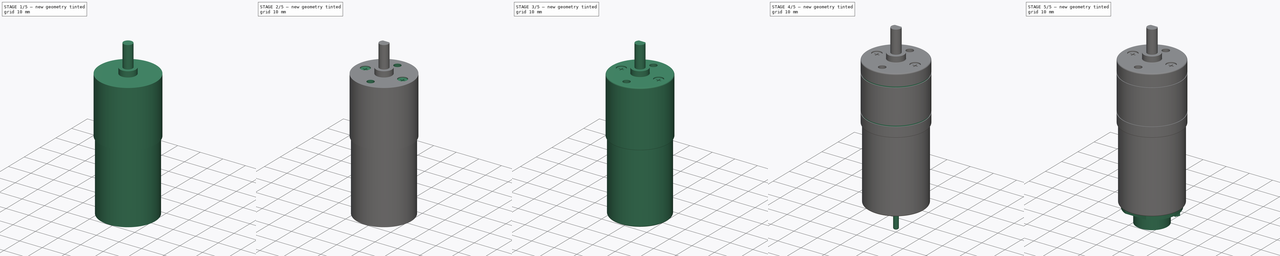
[diagram: build sequence overview — one tinted view per stage of 5, left to right]
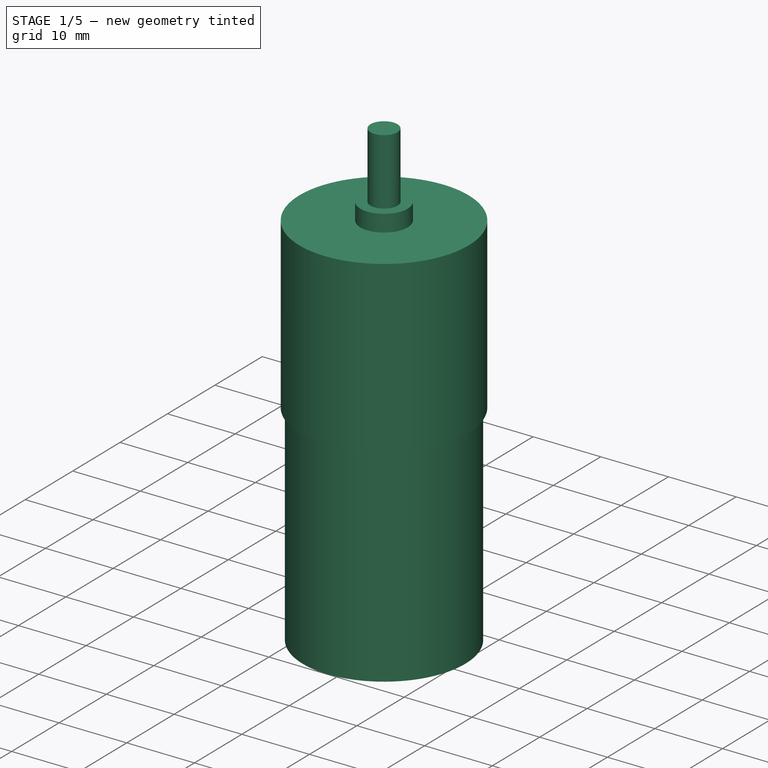
[diagram: stage 1 of 5 — iso view after this stage's code; geometry added in this stage tinted green]
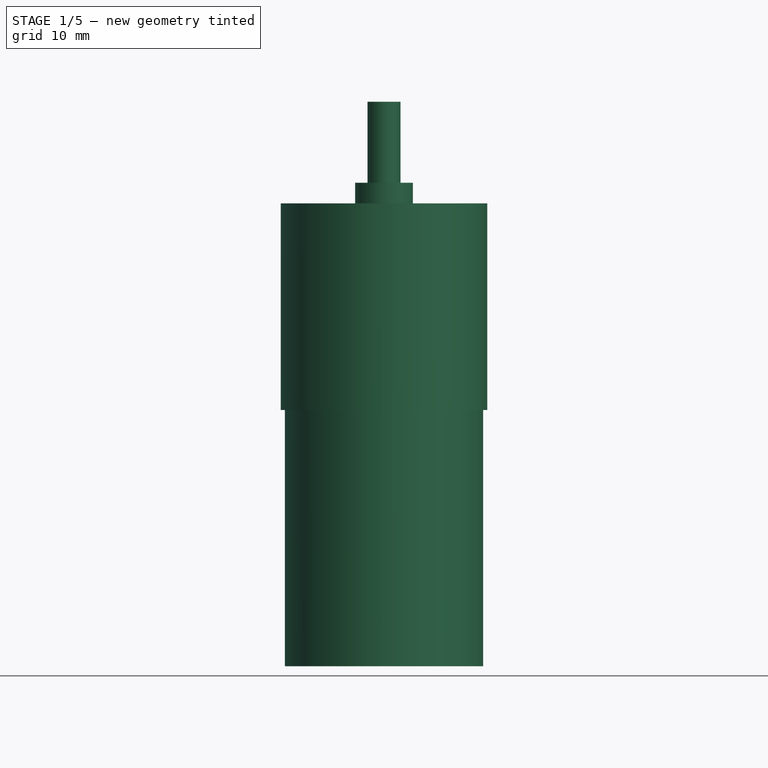
[diagram: stage 1 of 5 — front view after this stage's code; geometry added in this stage tinted green]
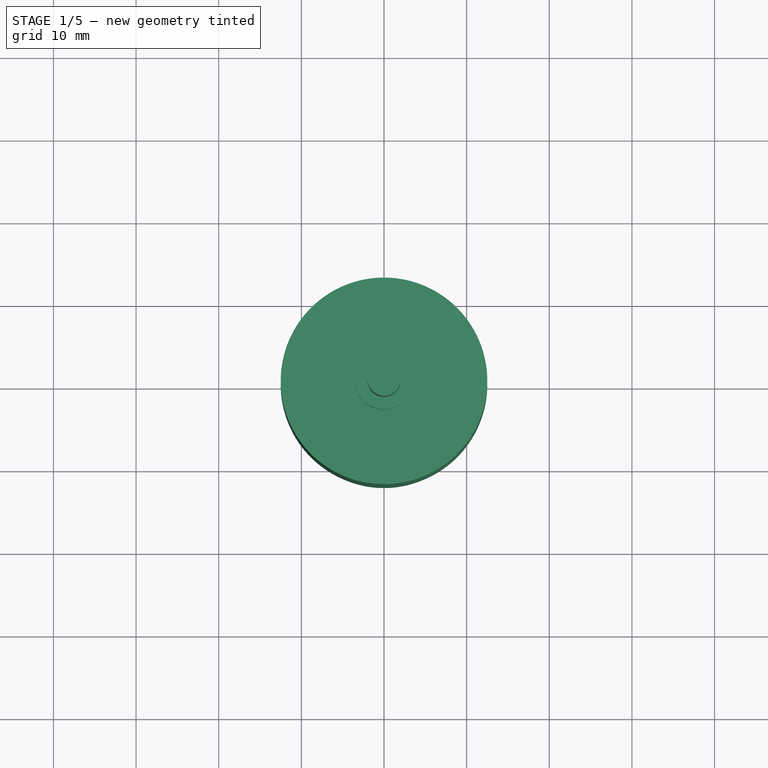
[diagram: stage 1 of 5 — top view after this stage's code; geometry added in this stage tinted green]
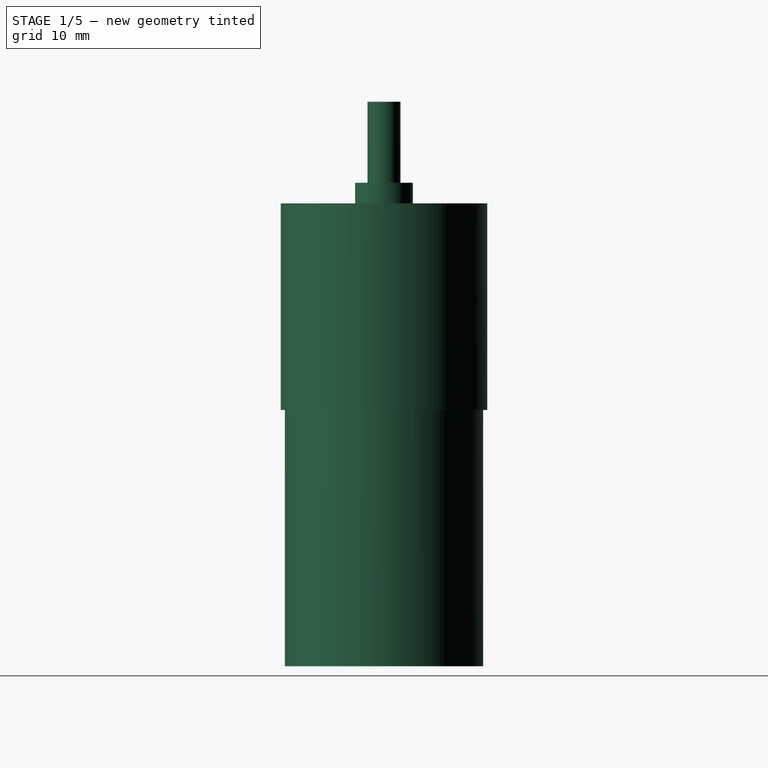
[diagram: stage 1 of 5 — right view after this stage's code; geometry added in this stage tinted green]
FCSTD DOCUMENT  (FreeCAD 1.0R39109 (Git))
Label: dc_motor_wenc
License: All rights reserved
LicenseURL: http://en.wikipedia.org/wiki/All_rights_reserved
objects: Sketcher::SketchObject×17, PartDesign::Pad×10, PartDesign::Fillet×6, PartDesign::Pocket×4, PartDesign::PolarPattern×1, PartDesign::Groove×1, PartDesign::Body×1
note: 100 computed .brp shape members not serialized (recipe doc carries the construction recipe); baked Part::Feature solids carry a one-line shape summary decoded from their .brp

FEATURE [Sketcher::SketchObject] Sketch
  ArcFitTolerance = 1e-06
  AttachmentSupport = -> [XY_Plane]
  FullyConstrained = true
  MakeInternals = false
  MapMode = 5
  sketch-geometry (1):
    g0: Circle CenterX=0 CenterY=0 CenterZ=0 NormalX=0 NormalY=0 NormalZ=1 AngleXU=0 Radius=12
  constraints (2):
    c: Coincident(g0,g-1)
    c: Radius(g0) = 12
FEATURE [PartDesign::Pad] Pad  label="MotorPad"
  Direction = (0,0,1)
  Length = 31
  Length2 = 10
  Profile = -> Sketch
  ReferenceAxis = -> Sketch [N_Axis]
  Refine = true
  Suppressed = false
  Type = 0
FEATURE [Sketcher::SketchObject] Sketch001
  ArcFitTolerance = 1e-06
  AttachmentSupport = -> [Pad]
  FullyConstrained = true
  MakeInternals = false
  MapMode = 5
  Placement = pos=(0,0,31) rot=(0,0,1;0rad)
  sketch-geometry (1):
    g0: Circle CenterX=0 CenterY=0 CenterZ=0 NormalX=0 NormalY=0 NormalZ=1 AngleXU=0 Radius=12.5
  constraints (2):
    c: Coincident(g0,g-1)
    c: Radius(g0) = 12.5
FEATURE [PartDesign::Pad] Pad001  label="ReductorPad"
  BaseFeature = -> Pad
  Direction = (0,0,1)
  Length = 25
  Length2 = 10
  Profile = -> Sketch001
  ReferenceAxis = -> Sketch001 [N_Axis]
  Refine = true
  Suppressed = false
  Type = 0
FEATURE [Sketcher::SketchObject] Sketch002
  ArcFitTolerance = 1e-06
  AttachmentSupport = -> [Pad001]
  FullyConstrained = true
  MakeInternals = false
  MapMode = 5
  Placement = pos=(0,0,56) rot=(0,0,1;0rad)
  sketch-geometry (1):
    g0: Circle CenterX=0 CenterY=0 CenterZ=0 NormalX=0 NormalY=0 NormalZ=1 AngleXU=0 Radius=3.5
  constraints (2):
    c: Coincident(g0,g-1)
    c: Radius(g0) = 3.5
FEATURE [PartDesign::Pad] Pad002  label="ShaftSupportPad"
  BaseFeature = -> Pad001
  Direction = (0,0,1)
  Length = 2.5
  Length2 = 10
  Profile = -> Sketch002
  ReferenceAxis = -> Sketch002 [N_Axis]
  Refine = true
  Suppressed = false
  Type = 0
FEATURE [Sketcher::SketchObject] Sketch003
  ArcFitTolerance = 1e-06
  AttachmentSupport = -> [Pad002]
  FullyConstrained = true
  MakeInternals = false
  MapMode = 5
  Placement = pos=(0,0,58.5) rot=(0,0,1;0rad)
  sketch-geometry (1):
    g0: Circle CenterX=0 CenterY=0 CenterZ=0 NormalX=0 NormalY=0 NormalZ=1 AngleXU=0 Radius=2
  constraints (2):
    c: Coincident(g0,g-1)
    c: Radius(g0) = 2
FEATURE [PartDesign::Pad] Pad003  label="ShaftPad"
  BaseFeature = -> Pad002
  Direction = (0,0,1)
  Length = 9.8
  Length2 = 10
  Profile = -> Sketch003
  ReferenceAxis = -> Sketch003 [N_Axis]
  Refine = true
  Suppressed = false
  Type = 0
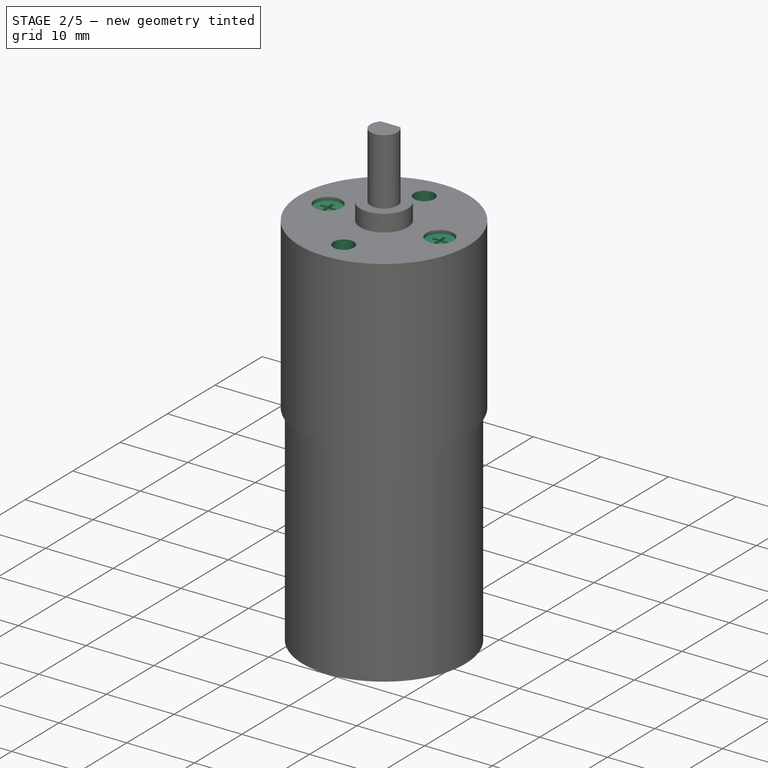
[diagram: stage 2 of 5 — iso view after this stage's code; geometry added in this stage tinted green]
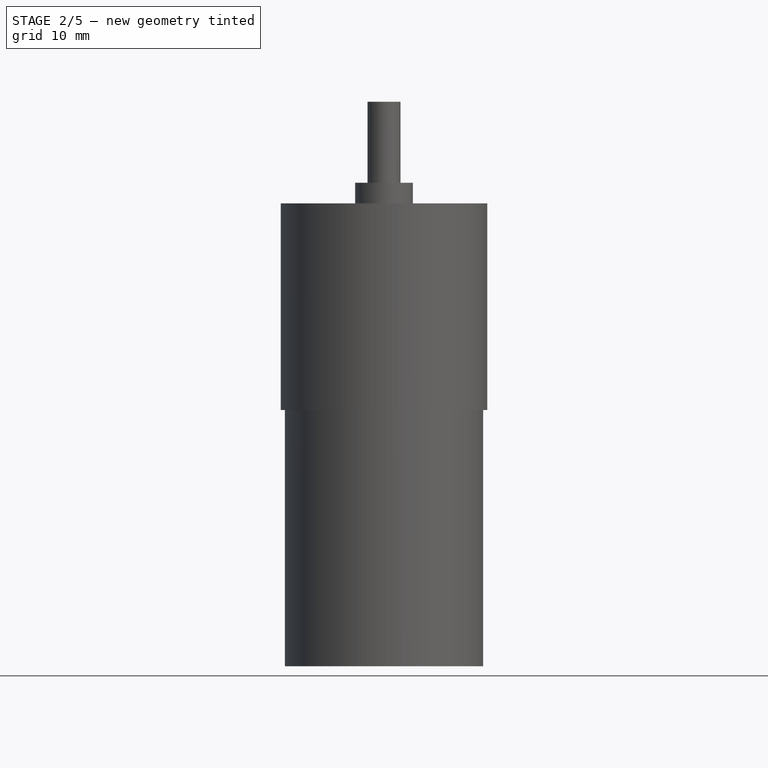
[diagram: stage 2 of 5 — front view after this stage's code; geometry added in this stage tinted green]
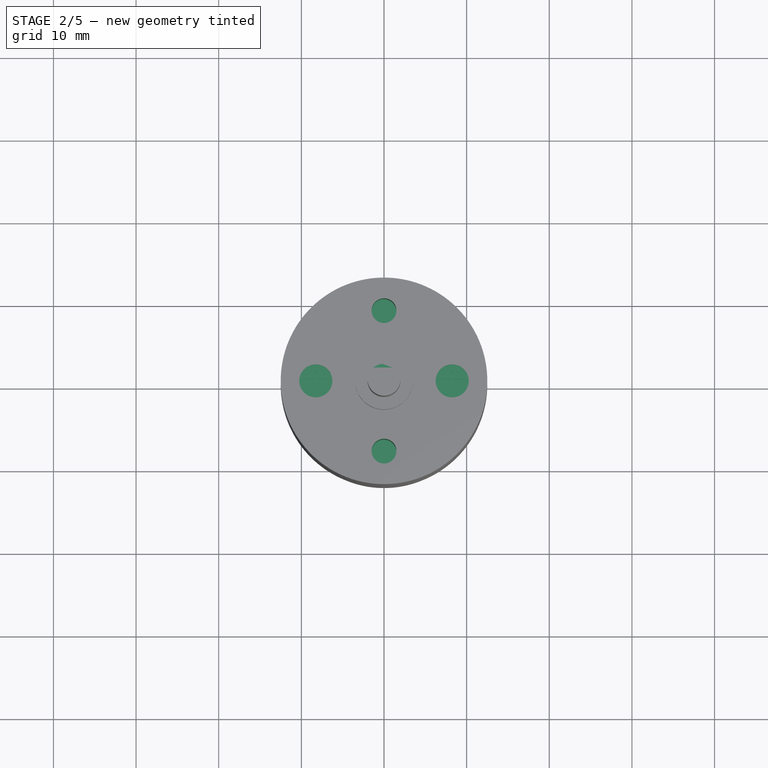
[diagram: stage 2 of 5 — top view after this stage's code; geometry added in this stage tinted green]
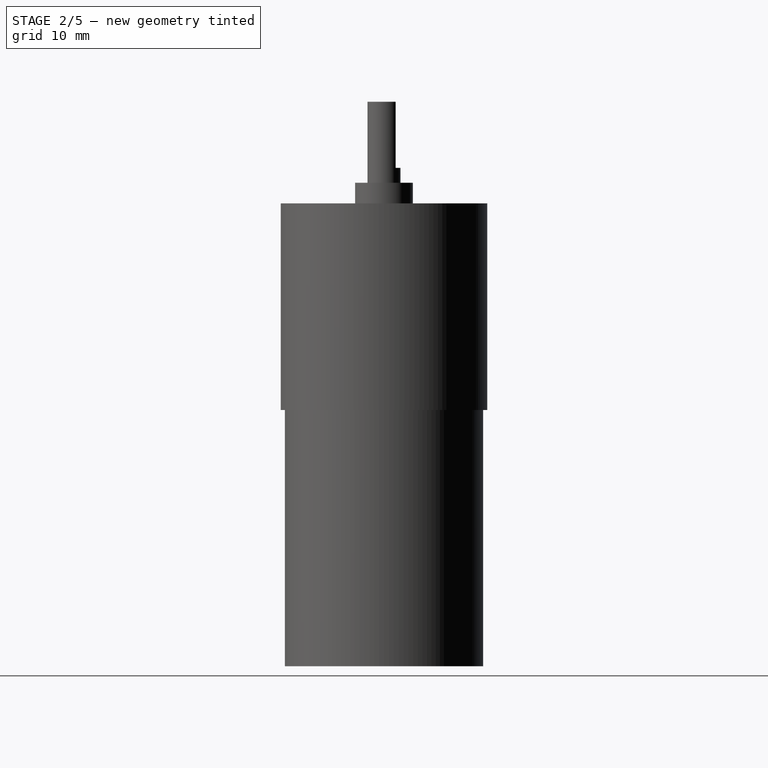
[diagram: stage 2 of 5 — right view after this stage's code; geometry added in this stage tinted green]
FEATURE [Sketcher::SketchObject] Sketch004
  ArcFitTolerance = 1e-06
  AttachmentSupport = -> [Pad003]
  ExternalGeometry = -> [Pad003]
  FullyConstrained = true
  MakeInternals = false
  MapMode = 5
  Placement = pos=(0,0,68.3) rot=(0,0,1;0rad)
  sketch-geometry (3):
    g0: ArcOfCircle CenterX=0 CenterY=0 CenterZ=0 NormalX=0 NormalY=0 NormalZ=1 AngleXU=0 Radius=2 StartAngle=0.775397 EndAngle=2.3662
    g1: LineSegment StartX=-1.42829 StartY=1.4 StartZ=0 EndX=1.42829 EndY=1.4 EndZ=0
    g2: GeomPoint X=0 Y=-2 Z=0
  constraints (8):
    c: Coincident(g0,g-1)
    c: PointOnObject(g0,g-3)
    c: Coincident(g1,g0)
    c: Coincident(g1,g0)
    c: Horizontal(g1)
    c: PointOnObject(g2,g-3)
    c: PointOnObject(g2,g-2)
    c: DistanceY(g2,g0) = 3.4
FEATURE [PartDesign::Pocket] Pocket  label="ShaftLockPocket"
  BaseFeature = -> Pad003
  Direction = (0,0,-1)
  Length = 8
  Length2 = 5
  Profile = -> Sketch004
  ReferenceAxis = -> Sketch004 [N_Axis]
  Refine = true
  Suppressed = false
  Type = 0
FEATURE [Sketcher::SketchObject] Sketch005
  ArcFitTolerance = 1e-06
  AttachmentSupport = -> [Pocket]
  FullyConstrained = true
  MakeInternals = false
  MapMode = 5
  Placement = pos=(0,0,56) rot=(0,0,1;0rad)
  sketch-geometry (1):
    g0: Circle CenterX=-8.25 CenterY=0 CenterZ=0 NormalX=0 NormalY=0 NormalZ=1 AngleXU=0 Radius=2
  constraints (3):
    c: PointOnObject(g0,g-1)
    c: DistanceX(g0,g-1) = 8.25
    c: Radius(g0) = 2
FEATURE [PartDesign::Pocket] Pocket001  label="ScrewPocket"
  BaseFeature = -> Pocket
  Direction = (0,0,-1)
  Length = 0.5
  Length2 = 5
  Profile = -> Sketch005
  ReferenceAxis = -> Sketch005 [N_Axis]
  Refine = true
  Suppressed = false
  Type = 0
FEATURE [Sketcher::SketchObject] Sketch006
  ArcFitTolerance = 1e-06
  AttachmentSupport = -> [Pocket001]
  ExternalGeometry = -> [Pocket001]
  FullyConstrained = true
  MakeInternals = false
  MapMode = 5
  Placement = pos=(0,0,55.5) rot=(0,0,1;0rad)
  sketch-geometry (12):
    g0: LineSegment StartX=-8.47 StartY=0.22 StartZ=0 EndX=-8.47 EndY=1.1 EndZ=0
    g1: LineSegment StartX=-8.47 StartY=1.1 StartZ=0 EndX=-8.03 EndY=1.1 EndZ=0
    g2: LineSegment StartX=-8.03 StartY=1.1 StartZ=0 EndX=-8.03 EndY=0.22 EndZ=0
    g3: LineSegment StartX=-8.03 StartY=0.22 StartZ=0 EndX=-7.15 EndY=0.22 EndZ=0
    g4: LineSegment StartX=-7.15 StartY=0.22 StartZ=0 EndX=-7.15 EndY=-0.22 EndZ=0
    g5: LineSegment StartX=-7.15 StartY=-0.22 StartZ=0 EndX=-8.03 EndY=-0.22 EndZ=0
    g6: LineSegment StartX=-8.03 StartY=-0.22 StartZ=0 EndX=-8.03 EndY=-1.1 EndZ=0
    g7: LineSegment StartX=-8.03 StartY=-1.1 StartZ=0 EndX=-8.47 EndY=-1.1 EndZ=0
    g8: LineSegment StartX=-8.47 StartY=-1.1 StartZ=0 EndX=-8.47 EndY=-0.22 EndZ=0
    g9: LineSegment StartX=-8.47 StartY=-0.22 StartZ=0 EndX=-9.35 EndY=-0.22 EndZ=0
    g10: LineSegment StartX=-9.35 StartY=-0.22 StartZ=0 EndX=-9.35 EndY=0.22 EndZ=0
    g11: LineSegment StartX=-9.35 StartY=0.22 StartZ=0 EndX=-8.47 EndY=0.22 EndZ=0
  constraints (34):
    c: Vertical(g0)
    c: Coincident(g0,g1)
    c: Coincident(g1,g2)
    c: Coincident(g2,g3)
    c: Horizontal(g3)
    c: Coincident(g3,g4)
    c: Coincident(g4,g5)
    c: Coincident(g5,g6)
    c: Coincident(g6,g7)
    c: Horizontal(g7)
    c: Coincident(g7,g8)
    c: Coincident(g8,g9)
    c: Coincident(g9,g10)
    c: Coincident(g10,g11)
    c: Coincident(g11,g0)
    c: Horizontal(g0,g2)
    c: Horizontal(g11)
    c: Horizontal(g1)
    c: Horizontal(g5,g8)
    c: Horizontal(g9)
    c: Vertical(g10)
    c: Vertical(g8)
    c: Vertical(g8,g0)
    c: Vertical(g5,g2)
    c: Vertical(g6)
    c: Vertical(g2)
    c: Equal(g8,g0)
    c: Equal(g11,g3)
    c: Symmetric(g4,g3,g-1)
    c: Symmetric(g2,g8,g-3)
    c: Equal(g3,g2)
    c: Equal(g1,g10)
    c: DistanceY(g4,g4) = 0.44
    c: DistanceX(g3,g3) = 0.88
FEATURE [PartDesign::Pocket] Pocket002  label="ScrewCrossPocket"
  BaseFeature = -> Pocket001
  Direction = (0,0,-1)
  Length = 0.75
  Length2 = 5
  Profile = -> Sketch006
  ReferenceAxis = -> Sketch006 [N_Axis]
  Refine = true
  Suppressed = false
  Type = 0
FEATURE [PartDesign::PolarPattern] PolarPattern  label="ScrewPattern"
  Angle = 360
  Axis = -> Sketch005 [N_Axis]
  BaseFeature = -> Pocket002
  Mode = 0
  Occurrences = 2
  Offset = 120
  Originals = -> [Pocket001,Pocket002]
  Refine = true
  Suppressed = false
  TransformMode = 0
FEATURE [Sketcher::SketchObject] Sketch007
  ArcFitTolerance = 1e-06
  AttachmentSupport = -> [PolarPattern]
  FullyConstrained = true
  MakeInternals = false
  MapMode = 5
  Placement = pos=(0,0,56) rot=(0,0,1;0rad)
  sketch-geometry (2):
    g0: Circle CenterX=0 CenterY=8.5 CenterZ=0 NormalX=0 NormalY=0 NormalZ=1 AngleXU=0 Radius=1.5
    g1: Circle CenterX=0 CenterY=-8.5 CenterZ=0 NormalX=0 NormalY=0 NormalZ=1 AngleXU=0 Radius=1.5
  constraints (5):
    c: PointOnObject(g0,g-2)
    c: Symmetric(g0,g1,g-1)
    c: Radius(g0) = 1.5
    c: Equal(g1,g0)
    c: DistanceY(g1,g0) = 17
FEATURE [PartDesign::Pocket] Pocket003  label="MountHolesPocket"
  BaseFeature = -> PolarPattern
  Direction = (0,0,-1)
  Length = 7.5
  Length2 = 5
  Profile = -> Sketch007
  ReferenceAxis = -> Sketch007 [N_Axis]
  Refine = true
  Suppressed = false
  Type = 0
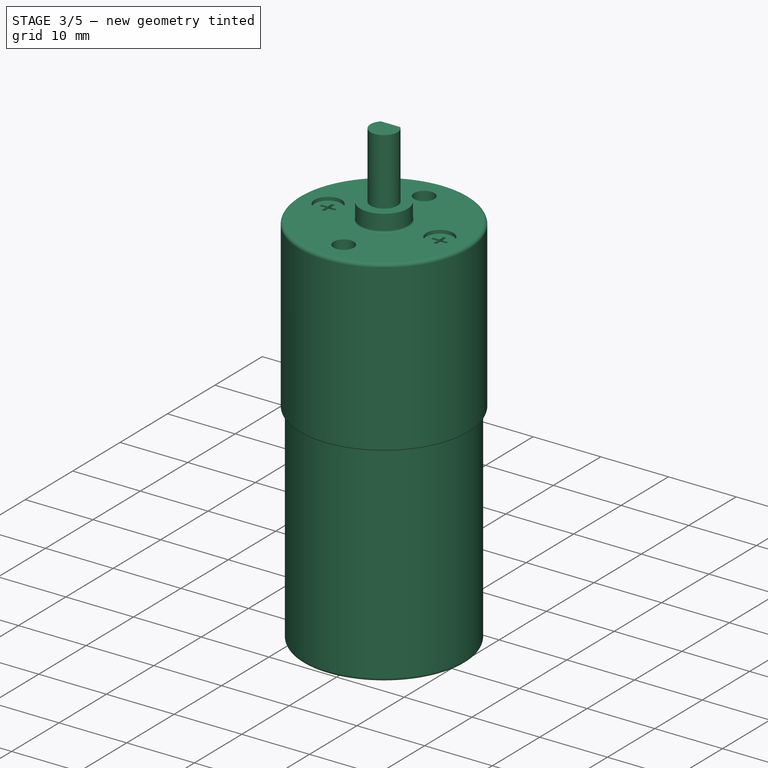
[diagram: stage 3 of 5 — iso view after this stage's code; geometry added in this stage tinted green]
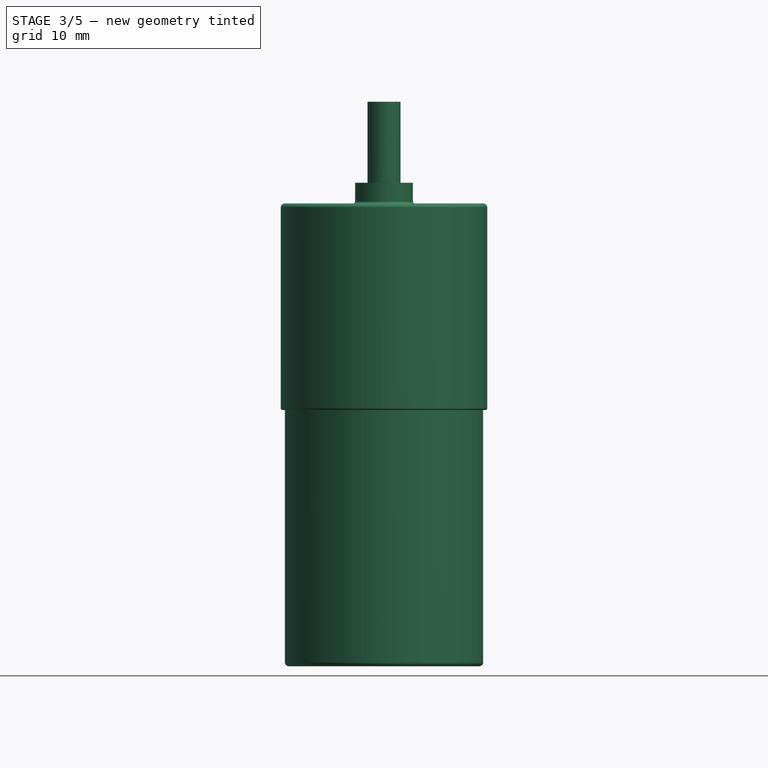
[diagram: stage 3 of 5 — front view after this stage's code; geometry added in this stage tinted green]
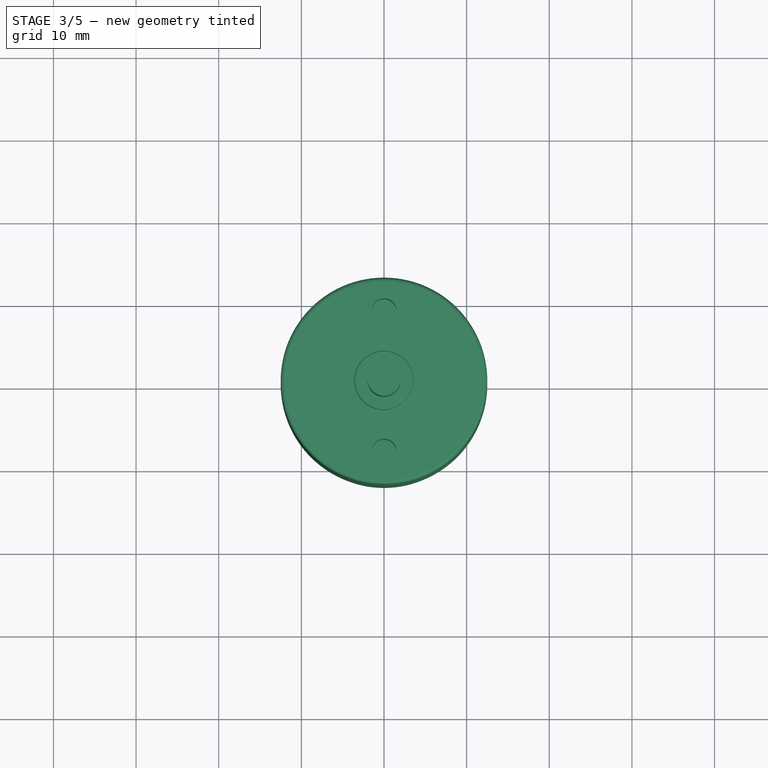
[diagram: stage 3 of 5 — top view after this stage's code; geometry added in this stage tinted green]
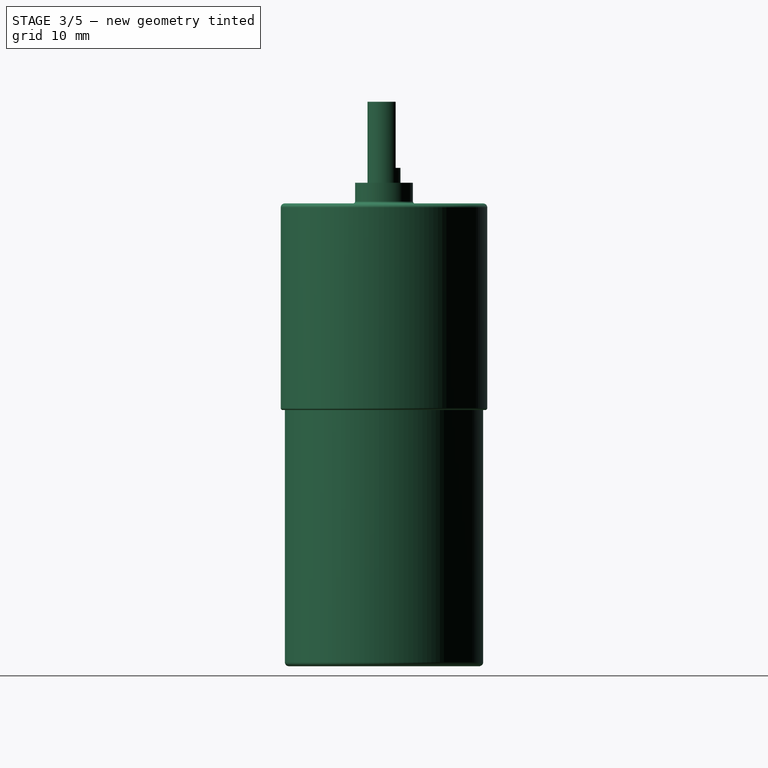
[diagram: stage 3 of 5 — right view after this stage's code; geometry added in this stage tinted green]
FEATURE [PartDesign::Fillet] Fillet  label="ShaftSupportFillet"
  Base = -> Pocket003 [Edge10]
  BaseFeature = -> Pocket003
  Radius = 0.25
  Refine = true
  SupportTransform = false
  Suppressed = false
  UseAllEdges = false
FEATURE [PartDesign::Fillet] Fillet001  label="ReductorFillet"
  Base = -> Fillet [Edge2]
  BaseFeature = -> Fillet
  Radius = 0.5
  Refine = true
  SupportTransform = false
  Suppressed = false
  UseAllEdges = false
FEATURE [PartDesign::Fillet] Fillet002  label="Reductor2Fillet"
  Base = -> Fillet001 [Edge20]
  BaseFeature = -> Fillet001
  Radius = 0.25
  Refine = true
  SupportTransform = false
  Suppressed = false
  UseAllEdges = false
FEATURE [PartDesign::Fillet] Fillet003  label="MotorFillet"
  Base = -> Fillet002 [Edge15]
  BaseFeature = -> Fillet002
  Radius = 0.5
  Refine = true
  SupportTransform = false
  Suppressed = false
  UseAllEdges = false
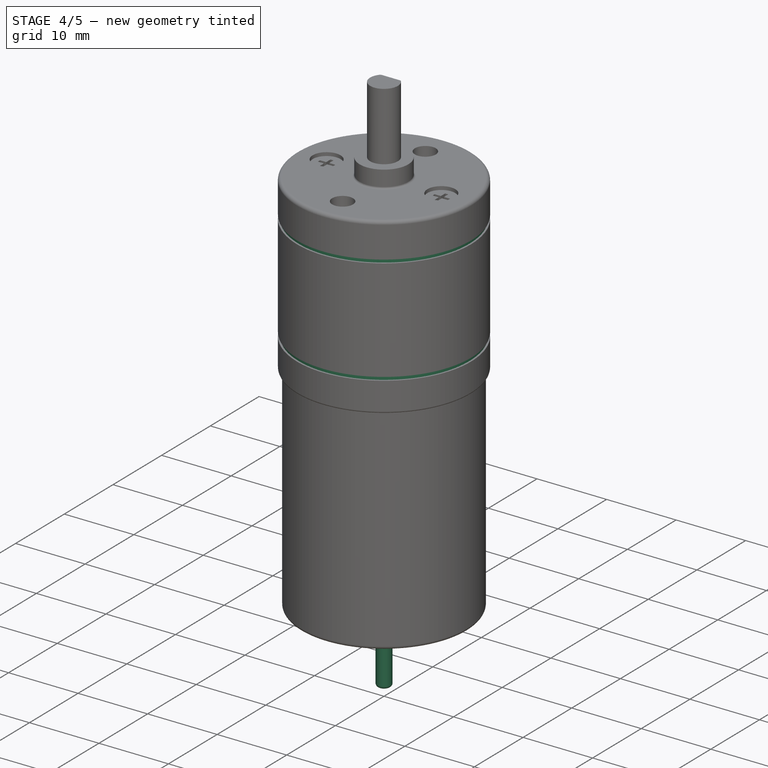
[diagram: stage 4 of 5 — iso view after this stage's code; geometry added in this stage tinted green]
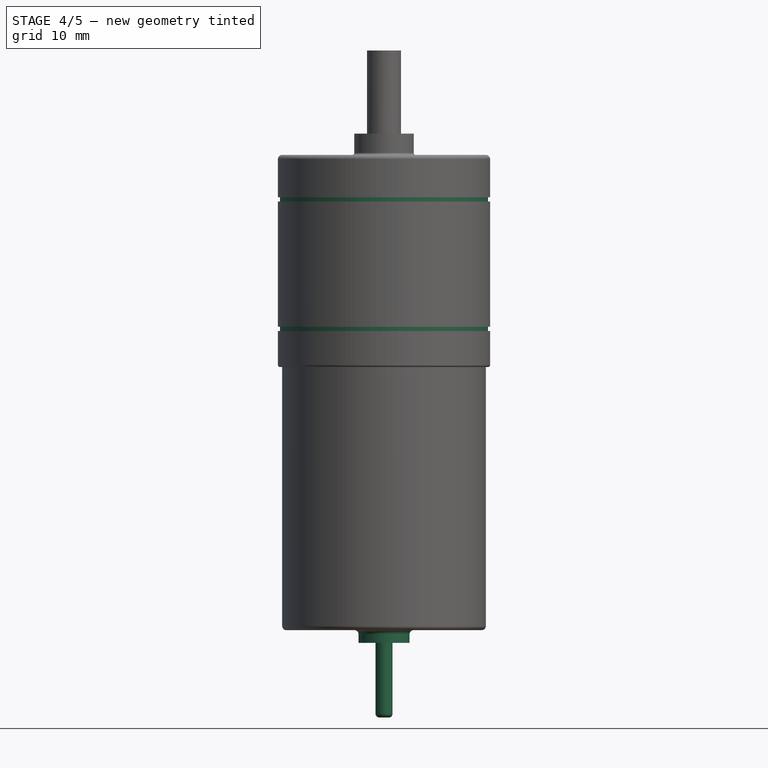
[diagram: stage 4 of 5 — front view after this stage's code; geometry added in this stage tinted green]
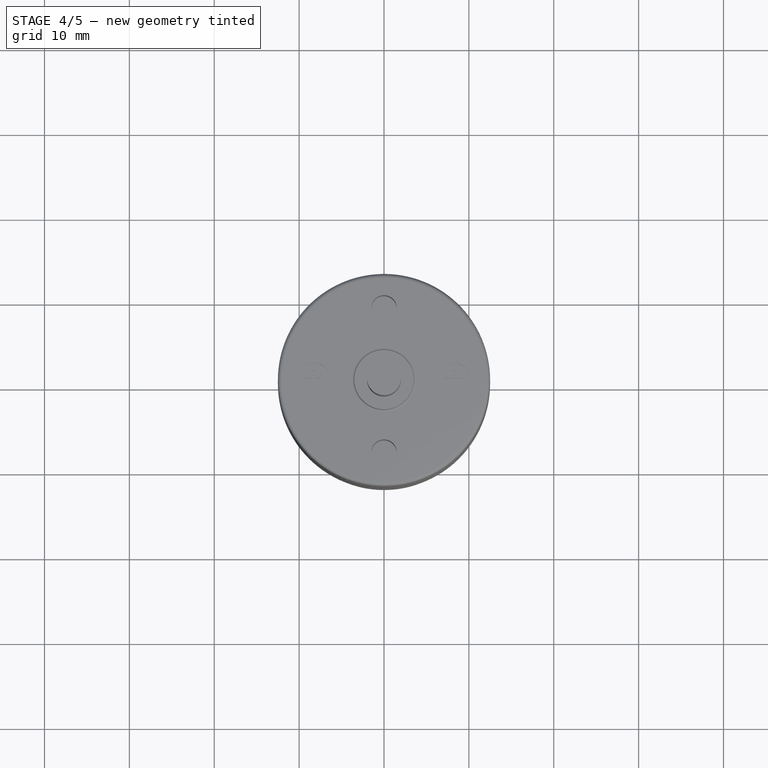
[diagram: stage 4 of 5 — top view after this stage's code; geometry added in this stage tinted green]
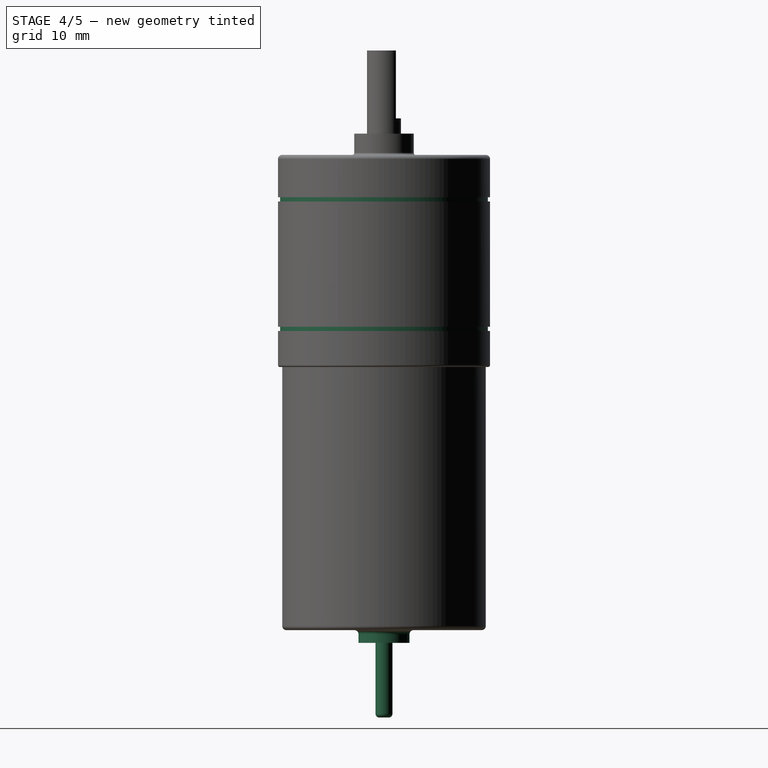
[diagram: stage 4 of 5 — right view after this stage's code; geometry added in this stage tinted green]
FEATURE [Sketcher::SketchObject] Sketch008
  ArcFitTolerance = 1e-06
  AttachmentSupport = -> [Fillet003]
  FullyConstrained = true
  MakeInternals = false
  MapMode = 5
  Placement = pos=(0,0,0) rot=(1,0,0;3.14159rad)
  sketch-geometry (1):
    g0: Circle CenterX=0 CenterY=0 CenterZ=0 NormalX=0 NormalY=0 NormalZ=1 AngleXU=0 Radius=3
  constraints (2):
    c: Coincident(g0,g-1)
    c: Radius(g0) = 3
FEATURE [PartDesign::Pad] Pad004  label="BackExtensionPad"
  BaseFeature = -> Fillet003
  Direction = (0,0,-1)
  Length = 1.5
  Length2 = 10
  Profile = -> Sketch008
  ReferenceAxis = -> Sketch008 [N_Axis]
  Refine = true
  Suppressed = false
  Type = 0
FEATURE [Sketcher::SketchObject] Sketch009
  ArcFitTolerance = 1e-06
  AttachmentSupport = -> [Pad004]
  FullyConstrained = true
  MakeInternals = false
  MapMode = 5
  Placement = pos=(0,0,-1.5) rot=(1,0,0;3.14159rad)
  sketch-geometry (1):
    g0: Circle CenterX=0 CenterY=0 CenterZ=0 NormalX=0 NormalY=0 NormalZ=1 AngleXU=0 Radius=1
  constraints (2):
    c: Coincident(g0,g-1)
    c: Radius(g0) = 1
FEATURE [PartDesign::Pad] Pad005  label="ShaftExtensionPad"
  BaseFeature = -> Pad004
  Direction = (0,0,-1)
  Length = 8.8
  Length2 = 10
  Profile = -> Sketch009
  ReferenceAxis = -> Sketch009 [N_Axis]
  Refine = true
  Suppressed = false
  Type = 0
FEATURE [PartDesign::Fillet] Fillet004  label="ShaftExtensionFillet"
  Base = -> Pad005 [Edge18]
  BaseFeature = -> Pad005
  Radius = 0.45
  Refine = true
  SupportTransform = false
  Suppressed = false
  UseAllEdges = false
FEATURE [PartDesign::Fillet] Fillet005  label="BackExtensionFillet"
  Base = -> Fillet004 [Edge8]
  BaseFeature = -> Fillet004
  Radius = 0.5
  Refine = true
  SupportTransform = false
  Suppressed = false
  UseAllEdges = false
FEATURE [Sketcher::SketchObject] Sketch010
  ArcFitTolerance = 1e-06
  AttachmentSupport = -> [XZ_Plane]
  ExternalGeometry = -> [Fillet004]
  FullyConstrained = true
  MakeInternals = false
  MapMode = 5
  Placement = pos=(0,0,0) rot=(1,0,0;1.5708rad)
  sketch-geometry (10):
    g0: LineSegment StartX=12.5 StartY=51 StartZ=0 EndX=12.5 EndY=50.5 EndZ=0
    g1: LineSegment StartX=12.5 StartY=50.5 StartZ=0 EndX=12.25 EndY=50.5 EndZ=0
    g2: LineSegment StartX=12.25 StartY=50.5 StartZ=0 EndX=12.25 EndY=51 EndZ=0
    g3: LineSegment StartX=12.25 StartY=51 StartZ=0 EndX=12.5 EndY=51 EndZ=0
    g4: LineSegment StartX=12.5 StartY=35.25 StartZ=0 EndX=12.5 EndY=35.75 EndZ=0
    g5: LineSegment StartX=12.5 StartY=35.75 StartZ=0 EndX=12.25 EndY=35.75 EndZ=0
    g6: LineSegment StartX=12.25 StartY=35.75 StartZ=0 EndX=12.25 EndY=35.25 EndZ=0
    g7: LineSegment StartX=12.25 StartY=35.25 StartZ=0 EndX=12.5 EndY=35.25 EndZ=0
    g8: LineSegment [constr] StartX=12.5 StartY=55.5 StartZ=0 EndX=12.5 EndY=51 EndZ=0
    g9: LineSegment [constr] StartX=12.5 StartY=35.75 StartZ=0 EndX=12.5 EndY=31.25 EndZ=0
  constraints (28):
    c: Coincident(g0,g1)
    c: Coincident(g1,g2)
    c: Vertical(g2)
    c: Coincident(g2,g3)
    c: Coincident(g3,g0)
    c: Vertical(g4)
    c: Coincident(g4,g5)
    c: Coincident(g5,g6)
    c: Coincident(g6,g7)
    c: Coincident(g7,g4)
    c: Equal(g4,g0)
    c: Vertical(g4,g0)
    c: Vertical(g0,g-3)
    c: Horizontal(g3)
    c: Horizontal(g1)
    c: Vertical(g0)
    c: Horizontal(g5)
    c: Vertical(g6)
    c: Horizontal(g7)
    c: DistanceX(g1,g1) = 0.25
    c: DistanceY(g0,g0) = 0.5
    c: Coincident(g8,g-3)
    c: Coincident(g8,g0)
    c: Coincident(g9,g4)
    c: Coincident(g9,g-4)
    c: Equal(g9,g8)
    c: DistanceY(g9,g9) = 4.5
    c: Equal(g5,g1)
FEATURE [PartDesign::Groove] Groove  label="DetailReductorGroove"
  Angle = 360
  Angle2 = 60
  Axis = (0,2e-16,1)
  Base = (0,0,0)
  BaseFeature = -> Fillet005
  Profile = -> Sketch010
  ReferenceAxis = -> Sketch010 [V_Axis]
  Refine = true
  Suppressed = false
  Type = 0
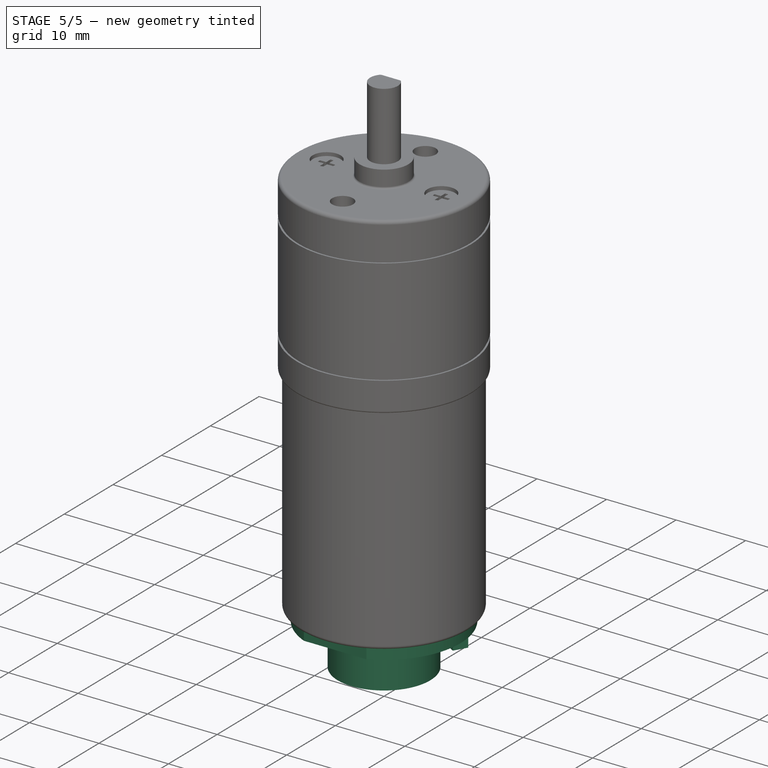
[diagram: stage 5 of 5 — iso view after this stage's code; geometry added in this stage tinted green]
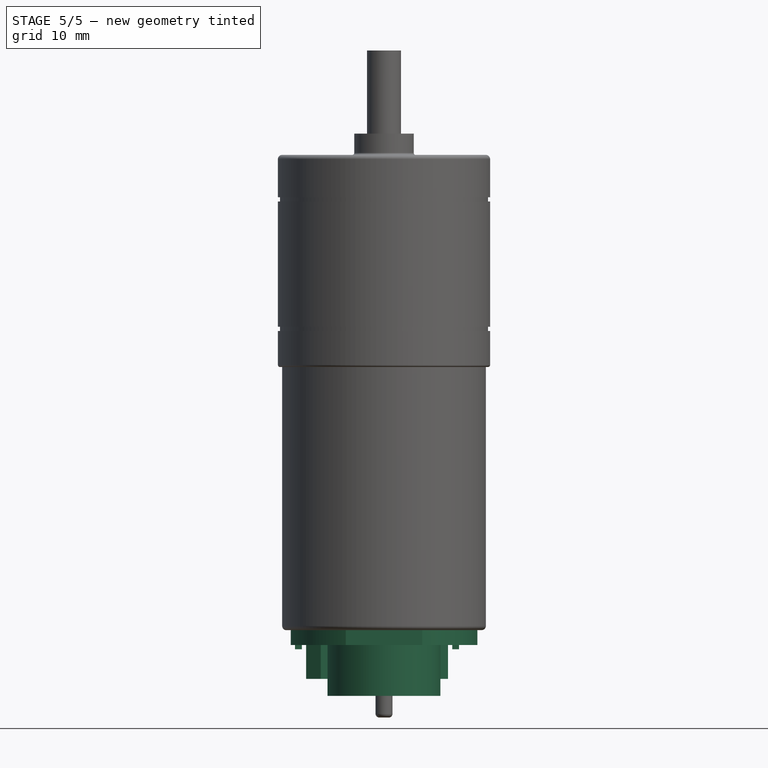
[diagram: stage 5 of 5 — front view after this stage's code; geometry added in this stage tinted green]
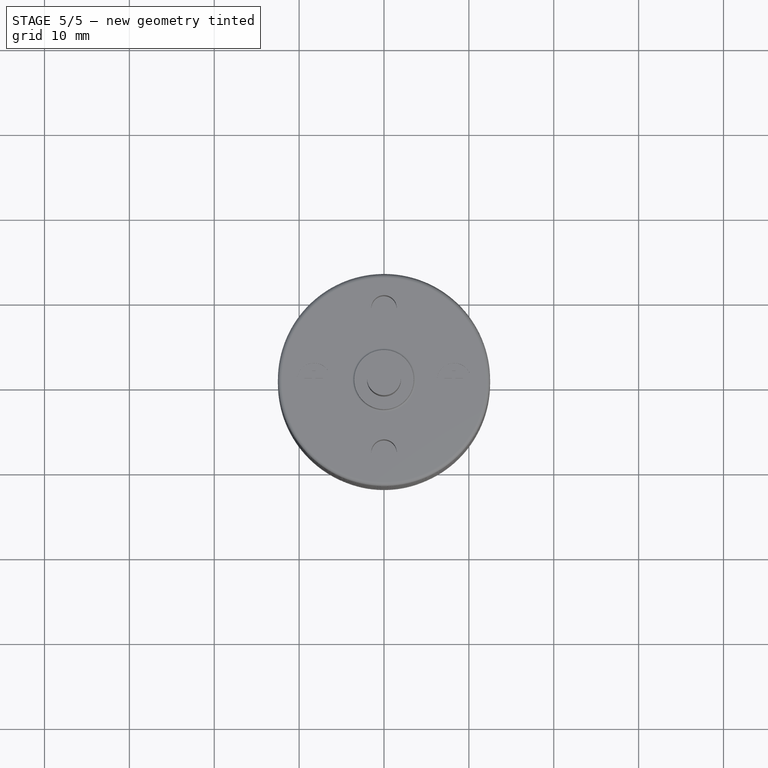
[diagram: stage 5 of 5 — top view after this stage's code; geometry added in this stage tinted green]
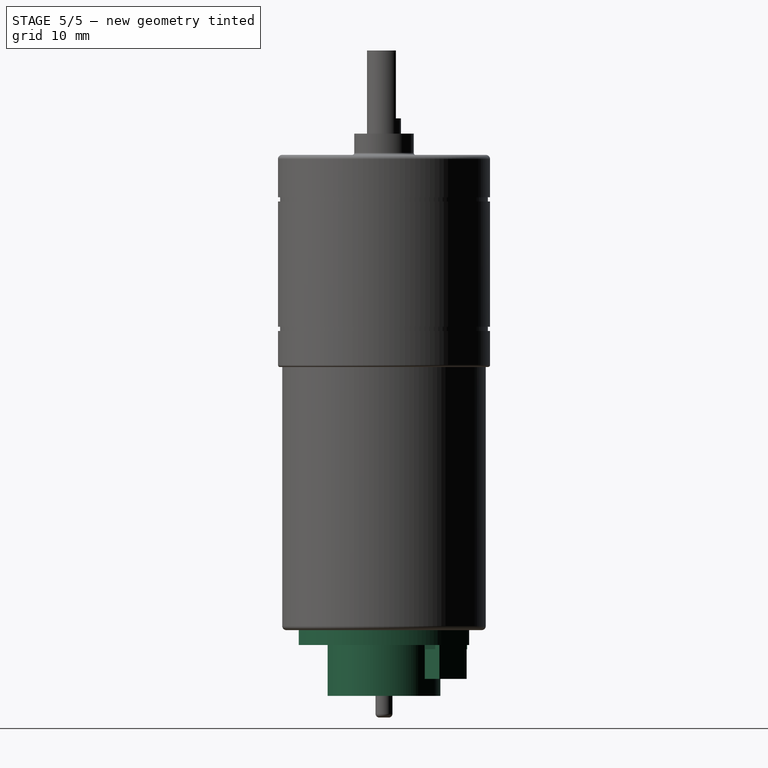
[diagram: stage 5 of 5 — right view after this stage's code; geometry added in this stage tinted green]
FEATURE [Sketcher::SketchObject] Sketch011
  ArcFitTolerance = 1e-06
  AttachmentSupport = -> [Groove]
  ExternalGeometry = -> [Groove]
  FullyConstrained = false
  MakeInternals = false
  MapMode = 5
  Placement = pos=(0,0,0) rot=(1,0,0;3.14159rad)
  sketch-geometry (7):
    g0: Circle [constr] CenterX=0 CenterY=0 CenterZ=0 NormalX=0 NormalY=0 NormalZ=1 AngleXU=0 Radius=11
    g1: LineSegment StartX=-4.5 StartY=10.0374 StartZ=0 EndX=4.5 EndY=10.0374 EndZ=0
    g2: LineSegment StartX=-4.5 StartY=-10.0374 StartZ=0 EndX=4.5 EndY=-10.0374 EndZ=0
    g3: ArcOfCircle CenterX=0.0149966 CenterY=1.5e-15 CenterZ=0 NormalX=0 NormalY=0 NormalZ=1 AngleXU=0 Radius=11.0061 StartAngle=1.9935 EndAngle=4.28969
    g4: ArcOfCircle CenterX=0.0149966 CenterY=1.5e-15 CenterZ=0 NormalX=0 NormalY=0 NormalZ=1 AngleXU=0 Radius=10.9939 StartAngle=5.1326 EndAngle=7.43377
    g5: GeomPoint X=11 Y=0 Z=0
    g6: GeomPoint X=11.5 Y=0 Z=0
  constraints (18):
    c: Coincident(g0,g-1)
    c: PointOnObject(g1,g0)
    c: PointOnObject(g1,g0)
    c: Horizontal(g1)
    c: PointOnObject(g2,g0)
    c: PointOnObject(g2,g0)
    c: Horizontal(g2)
    c: Coincident(g4,g3)
    c: Coincident(g4,g2)
    c: Coincident(g4,g1)
    c: Coincident(g3,g1)
    c: Coincident(g3,g2)
    c: DistanceX(g1,g1) = 9
    c: PointOnObject(g5,g0)
    c: PointOnObject(g6,g-3)
    c: PointOnObject(g6,g-1)
    c: PointOnObject(g5,g-1)
    c: DistanceX(g5,g6) = 0.5
FEATURE [PartDesign::Pad] Pad006  label="MagneticPad"
  BaseFeature = -> Groove
  Direction = (0,0,-1)
  Length = 1.75
  Length2 = 10
  Profile = -> Sketch011
  ReferenceAxis = -> Sketch011 [N_Axis]
  Refine = true
  Suppressed = false
  Type = 0
FEATURE [Sketcher::SketchObject] Sketch012
  ArcFitTolerance = 1e-06
  AttachmentSupport = -> [Pad006]
  FullyConstrained = true
  MakeInternals = false
  MapMode = 5
  Placement = pos=(0,0,-1.75) rot=(1,0,0;3.14159rad)
FEATURE [Sketcher::SketchObject] Sketch013
  ArcFitTolerance = 1e-06
  AttachmentSupport = -> [XY_Plane]
  FullyConstrained = true
  MakeInternals = false
  MapMode = 5
FEATURE [Sketcher::SketchObject] Sketch014
  ArcFitTolerance = 1e-06
  AttachmentSupport = -> [Pad006]
  FullyConstrained = true
  MakeInternals = false
  MapMode = 5
  Placement = pos=(0,0,-1.75) rot=(1,0,0;3.14159rad)
  sketch-geometry (2):
    g0: Circle CenterX=0 CenterY=0 CenterZ=0 NormalX=0 NormalY=0 NormalZ=1 AngleXU=0 Radius=6.65
    g1: Circle CenterX=0 CenterY=0 CenterZ=0 NormalX=0 NormalY=0 NormalZ=1 AngleXU=0 Radius=1.2
  constraints (4):
    c: Coincident(g1,g0)
    c: Radius(g1) = 1.2
    c: Coincident(g-1,g0)
    c: Radius(g0) = 6.65
FEATURE [PartDesign::Pad] Pad007  label="SensorsPad"
  BaseFeature = -> Pad006
  Direction = (0,0,-1)
  Length = 6
  Length2 = 10
  Profile = -> Sketch014
  ReferenceAxis = -> Sketch014 [N_Axis]
  Refine = true
  Suppressed = false
  Type = 0
FEATURE [Sketcher::SketchObject] Sketch015
  ArcFitTolerance = 1e-06
  AttachmentSupport = -> [Pad007]
  FullyConstrained = true
  MakeInternals = false
  MapMode = 5
  Placement = pos=(0,0,-1.75) rot=(1,0,0;3.14159rad)
  sketch-geometry (9):
    g0: LineSegment StartX=1 StartY=-8 StartZ=0 EndX=6.54256 EndY=-4.8 EndZ=0
    g1: LineSegment StartX=6.54256 StartY=-4.8 StartZ=0 EndX=7.54256 EndY=-6.53205 EndZ=0
    g2: LineSegment StartX=7.54256 StartY=-6.53205 StartZ=0 EndX=2 EndY=-9.73205 EndZ=0
    g3: LineSegment StartX=2 StartY=-9.73205 StartZ=0 EndX=1 EndY=-8 EndZ=0
    g4: LineSegment StartX=-9.18205 StartY=-2.45744 StartZ=0 EndX=-5.98205 EndY=-8 EndZ=0
    g5: LineSegment StartX=-5.98205 StartY=-8 StartZ=0 EndX=-4.25 EndY=-7 EndZ=0
    g6: LineSegment StartX=-7.45 StartY=-1.45744 StartZ=0 EndX=-9.18205 EndY=-2.45744 EndZ=0
    g7: LineSegment [constr] StartX=1 StartY=-8 StartZ=0 EndX=0 EndY=-8 EndZ=0
    g8: LineSegment StartX=-7.45 StartY=-1.45744 StartZ=0 EndX=-4.25 EndY=-7 EndZ=0
  constraints (27):
    c: Coincident(g0,g1)
    c: Coincident(g1,g2)
    c: Coincident(g2,g3)
    c: Coincident(g3,g0)
    c: Coincident(g4,g5)
    c: Coincident(g6,g4)
    c: Perpendicular(g0,g1)
    c: Perpendicular(g0,g3)
    c: Parallel(g2,g0)
    c: Parallel(g6,g5)
    c: Equal(g5,g1)
    c: Equal(g2,g4)
    c: Distance(g2) = 6.4
    c: Distance(g1) = 2
    c: Perpendicular(g4,g5)
    c: DistanceX(g0) = 1
    c: DistanceY(g0) = -8
    c: Coincident(g7,g0)
    c: PointOnObject(g7,g-2)
    c: Horizontal(g7)
    c: Angle(g0,g7) = 2.61799
    c: Horizontal(g0,g4)
    c: Coincident(g8,g6)
    c: Coincident(g8,g5)
    c: Perpendicular(g0,g8)
    c: Parallel(g8,g4)
    c: DistanceX(g5,g7) = 4.25
FEATURE [PartDesign::Pad] Pad008  label="Sensors2Pad"
  BaseFeature = -> Pad007
  Direction = (0,0,-1)
  Length = 4
  Length2 = 10
  Profile = -> Sketch015
  ReferenceAxis = -> Sketch015 [N_Axis]
  Refine = true
  Suppressed = false
  Type = 0
FEATURE [Sketcher::SketchObject] Sketch016
  ArcFitTolerance = 1e-06
  AttachmentSupport = -> [Pad008]
  ExternalGeometry = -> [Pad008]
  FullyConstrained = true
  MakeInternals = false
  MapMode = 5
  Placement = pos=(0,0,-1.75) rot=(1,0,0;3.14159rad)
  sketch-geometry (17):
    g0: LineSegment StartX=-4.25 StartY=-7.91243 StartZ=0 EndX=-4.25 EndY=-9.16243 EndZ=0
    g1: LineSegment StartX=-4.25 StartY=-9.16243 StartZ=0 EndX=-3.45 EndY=-9.16243 EndZ=0
    g2: LineSegment StartX=-3.45 StartY=-9.16243 StartZ=0 EndX=-3.45 EndY=-7.91243 EndZ=0
    g3: LineSegment StartX=-3.45 StartY=-7.91243 StartZ=0 EndX=-4.25 EndY=-7.91243 EndZ=0
    g4: LineSegment StartX=-0.4 StartY=-8.53743 StartZ=0 EndX=-0.4 EndY=-9.78743 EndZ=0
    g5: LineSegment StartX=-0.4 StartY=-9.78743 StartZ=0 EndX=0.4 EndY=-9.78743 EndZ=0
    g6: LineSegment StartX=0.4 StartY=-9.78743 StartZ=0 EndX=0.4 EndY=-8.53743 EndZ=0
    g7: LineSegment StartX=0.4 StartY=-8.53743 StartZ=0 EndX=-0.4 EndY=-8.53743 EndZ=0
    g8: LineSegment StartX=-10.4821 StartY=-1.20744 StartZ=0 EndX=-10.4821 EndY=-2.45744 EndZ=0
    g9: LineSegment StartX=-10.4821 StartY=-2.45744 StartZ=0 EndX=-9.68205 EndY=-2.45744 EndZ=0
    g10: LineSegment StartX=-9.68205 StartY=-2.45744 StartZ=0 EndX=-9.68205 EndY=-1.20744 EndZ=0
    g11: LineSegment StartX=-9.68205 StartY=-1.20744 StartZ=0 EndX=-10.4821 EndY=-1.20744 EndZ=0
    g12: LineSegment StartX=8.04256 StartY=-4.78205 StartZ=0 EndX=8.04256 EndY=-6.03205 EndZ=0
    g13: LineSegment StartX=8.04256 StartY=-6.03205 StartZ=0 EndX=8.84256 EndY=-6.03205 EndZ=0
    g14: LineSegment StartX=8.84256 StartY=-6.03205 StartZ=0 EndX=8.84256 EndY=-4.78205 EndZ=0
    g15: LineSegment StartX=8.84256 StartY=-4.78205 StartZ=0 EndX=8.04256 EndY=-4.78205 EndZ=0
    g16: GeomPoint X=-0.4 Y=-9.16243 Z=0
  constraints (48):
    c: Coincident(g0,g1)
    c: Coincident(g1,g2)
    c: Coincident(g2,g3)
    c: Coincident(g3,g0)
    c: Vertical(g0)
    c: Vertical(g2)
    c: Horizontal(g1)
    c: Horizontal(g3)
    c: Coincident(g4,g5)
    c: Coincident(g5,g6)
    c: Coincident(g6,g7)
    c: Coincident(g7,g4)
    c: Vertical(g4)
    c: Vertical(g6)
    c: Horizontal(g5)
    c: Coincident(g8,g9)
    c: Coincident(g9,g10)
    c: Coincident(g10,g11)
    c: Coincident(g11,g8)
    c: Vertical(g8)
    c: Vertical(g10)
    c: Horizontal(g9)
    c: Horizontal(g11)
    c: Equal(g11,g3)
    c: Equal(g3,g7)
    c: Equal(g2,g6)
    c: Equal(g6,g10)
    c: Symmetric(g4,g6,g-2)
    c: DistanceY(g6,g6) = 1.25
    c: DistanceX(g7,g7) = 0.8
    c: Coincident(g12,g13)
    c: Coincident(g13,g14)
    c: Coincident(g14,g15)
    c: Coincident(g15,g12)
    c: Vertical(g12)
    c: Vertical(g14)
    c: Horizontal(g13)
    c: Horizontal(g15)
    c: Equal(g6,g12)
    c: Equal(g7,g15)
    c: DistanceY(g-3,g5) = 0.25
    c: Symmetric(g4,g4,g16)
    c: Horizontal(g16,g1)
    c: Vertical(g0,g-4)
    c: Horizontal(g9,g-5)
    c: DistanceX(g9,g-5) = 0.5
    c: DistanceY(g-6,g12) = 0.5
    c: DistanceX(g-6,g12) = 0.5
FEATURE [PartDesign::Pad] Pad009  label="ResistorsPad"
  BaseFeature = -> Pad008
  Direction = (0,0,-1)
  Length = 0.5
  Length2 = 10
  Profile = -> Sketch016
  ReferenceAxis = -> Sketch016 [N_Axis]
  Refine = true
  Suppressed = false
  Type = 0
FEATURE [PartDesign::Body] Body  label="MotorDCwEnc"
  AllowCompound = false
  Group = -> [Sketch,Pad,Sketch001,Pad001,Sketch002,Pad002,Sketch003,Pad003,Sketch004,Pocket,Sketch005,Pocket001,Sketch006,Pocket002,PolarPattern,Sketch007,Pocket003,Fillet,Fillet001,Fillet002,Fillet003,Sketch008,Pad004,Sketch009,Pad005,Fillet004,Fillet005,Sketch010,Groove,Sketch011,Pad006,Sketch012,Sketch013,Sketch014,Pad007,Sketch015,Pad008,Sketch016,Pad009]
  Origin = -> Origin
  Tip = -> Pad009
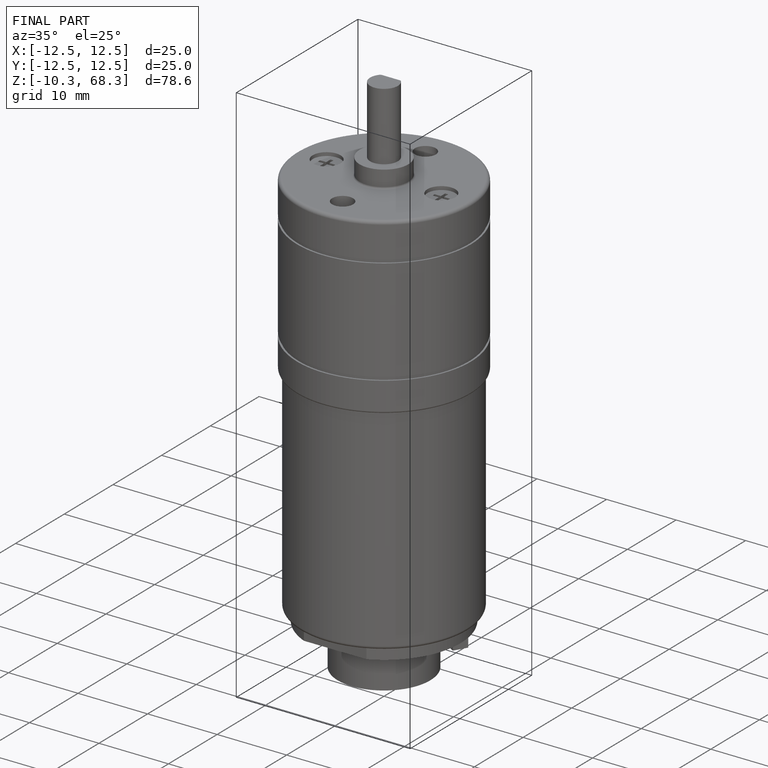
[diagram: finished part — iso view with bounding-box wireframe]
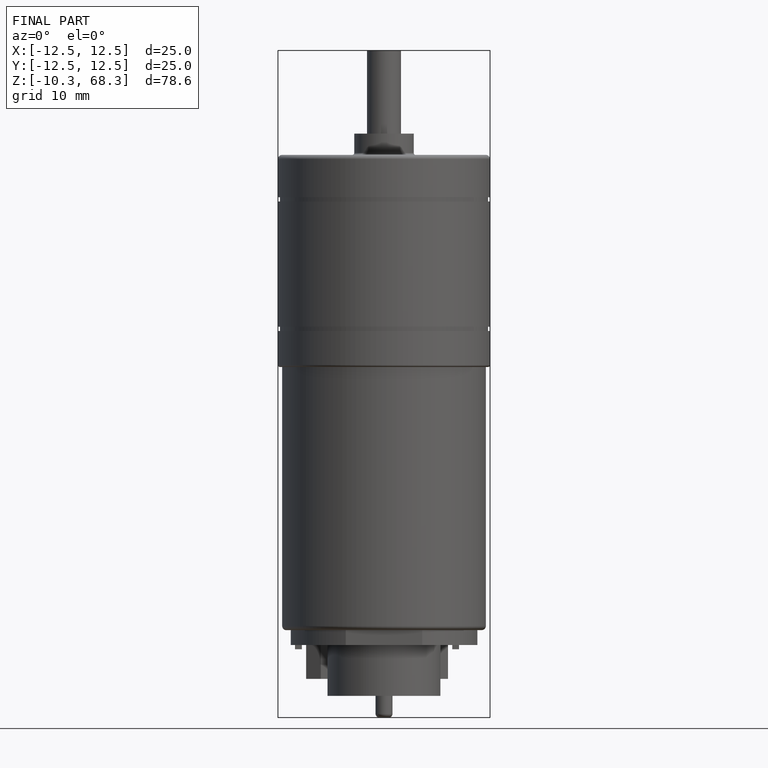
[diagram: finished part — front view with bounding-box wireframe]
